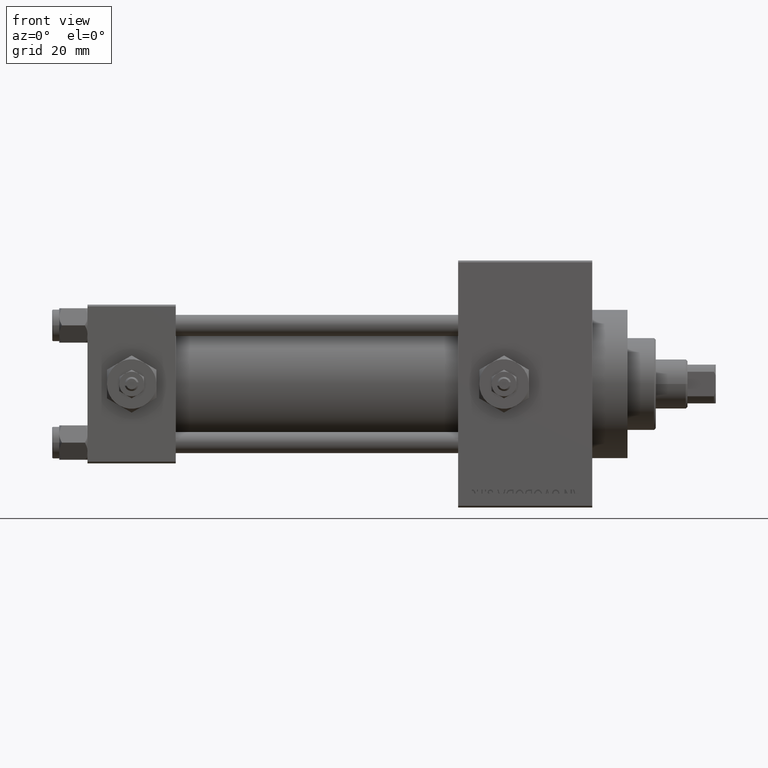
[diagram: clean part render]
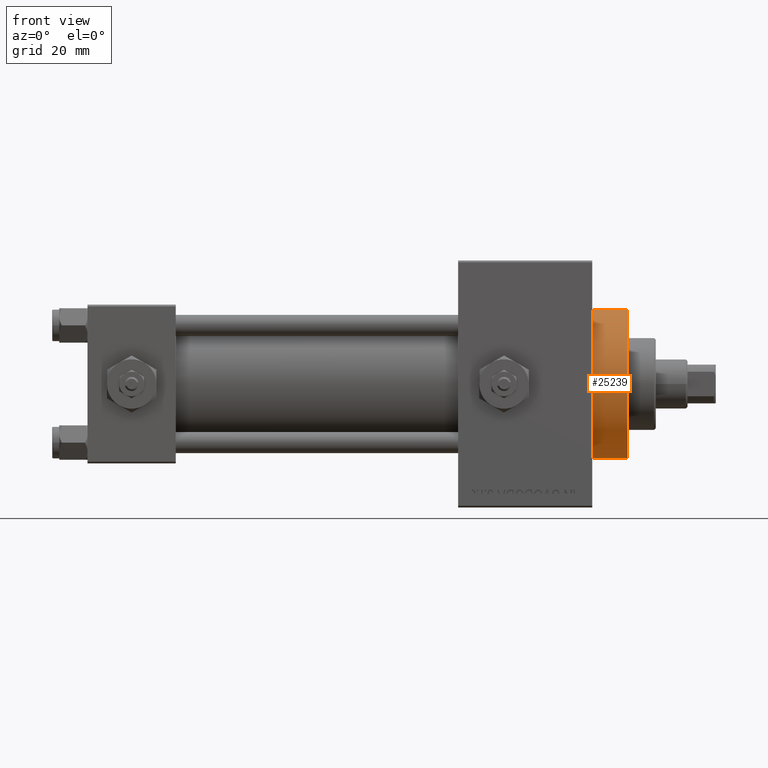
[diagram: same view with one face highlighted and labeled with its STEP entity id]
A machine part, front view. The second image highlights one B-rep face of the part: STEP entity #25239.
In plain terms, the highlighted cylindrical surface (partial cylindrical patch) has radius 21 mm, axis along (-1, -0, -0).
Its self-contained STEP definition (entity closure, byte-faithful):
#1595 = CARTESIAN_POINT ( 'NONE',  ( 143.0000000000000284, 2.571758278209441661E-15, -21.00000000000000000 ) ) ;
#2831 = EDGE_CURVE ( 'NONE', #43734, #8351, #10675, .T. ) ;
#2876 = DIRECTION ( 'NONE',  ( 0.000000000000000000, 0.000000000000000000, -1.000000000000000000 ) ) ;
#5166 = EDGE_CURVE ( 'NONE', #21254, #26496, #9471, .T. ) ;
#5625 = EDGE_CURVE ( 'NONE', #8351, #26496, #10371, .T. ) ;
#8351 = VERTEX_POINT ( 'NONE', #15463 ) ;
#9139 = ORIENTED_EDGE ( 'NONE', *, *, #5166, .F. ) ;
#9222 = AXIS2_PLACEMENT_3D ( 'NONE', #23115, #22864, #34569 ) ;
#9387 = CARTESIAN_POINT ( 'NONE',  ( 153.0000000000000284, 0.000000000000000000, 0.000000000000000000 ) ) ;
#9471 = LINE ( 'NONE', #24677, #40536 ) ;
#10371 = CIRCLE ( 'NONE', #11135, 21.00000000000000000 ) ;
#10675 = LINE ( 'NONE', #44079, #13010 ) ;
#11135 = AXIS2_PLACEMENT_3D ( 'NONE', #23081, #32445, #35945 ) ;
#11694 = CIRCLE ( 'NONE', #18056, 21.00000000000000000 ) ;
#11749 = ORIENTED_EDGE ( 'NONE', *, *, #28825, .F. ) ;
#13010 = VECTOR ( 'NONE', #33334, 1000.000000000000000 ) ;
#15463 = CARTESIAN_POINT ( 'NONE',  ( 143.0000000000000284, 0.000000000000000000, 21.00000000000000000 ) ) ;
#18056 = AXIS2_PLACEMENT_3D ( 'NONE', #9387, #36296, #2876 ) ;
#19380 = CARTESIAN_POINT ( 'NONE',  ( 153.0000000000000284, 2.571758278209441661E-15, -21.00000000000000000 ) ) ;
#21254 = VERTEX_POINT ( 'NONE', #19380 ) ;
#22569 = ORIENTED_EDGE ( 'NONE', *, *, #2831, .T. ) ;
#22864 = DIRECTION ( 'NONE',  ( -1.000000000000000000, -0.000000000000000000, -0.000000000000000000 ) ) ;
#23081 = CARTESIAN_POINT ( 'NONE',  ( 143.0000000000000284, 0.000000000000000000, 0.000000000000000000 ) ) ;
#23115 = CARTESIAN_POINT ( 'NONE',  ( 153.0000000000000284, 0.000000000000000000, 0.000000000000000000 ) ) ;
#24677 = CARTESIAN_POINT ( 'NONE',  ( 153.0000000000000284, 2.571758278209441661E-15, -21.00000000000000000 ) ) ;
#24930 = DIRECTION ( 'NONE',  ( -1.000000000000000000, -0.000000000000000000, -0.000000000000000000 ) ) ;
#25239 = ADVANCED_FACE ( 'NONE', ( #35054 ), #30818, .T. ) ;
#26496 = VERTEX_POINT ( 'NONE', #1595 ) ;
#28825 = EDGE_CURVE ( 'NONE', #43734, #21254, #11694, .T. ) ;
#30503 = CARTESIAN_POINT ( 'NONE',  ( 153.0000000000000284, 0.000000000000000000, 21.00000000000000000 ) ) ;
#30818 = CYLINDRICAL_SURFACE ( 'NONE', #9222, 21.00000000000000000 ) ;
#32445 = DIRECTION ( 'NONE',  ( 1.000000000000000000, 0.000000000000000000, 0.000000000000000000 ) ) ;
#33334 = DIRECTION ( 'NONE',  ( -1.000000000000000000, -0.000000000000000000, -0.000000000000000000 ) ) ;
#34569 = DIRECTION ( 'NONE',  ( 0.000000000000000000, 0.000000000000000000, 1.000000000000000000 ) ) ;
#35054 = FACE_OUTER_BOUND ( 'NONE', #46505, .T. ) ;
#35945 = DIRECTION ( 'NONE',  ( 0.000000000000000000, 0.000000000000000000, -1.000000000000000000 ) ) ;
#36296 = DIRECTION ( 'NONE',  ( 1.000000000000000000, 0.000000000000000000, 0.000000000000000000 ) ) ;
#40536 = VECTOR ( 'NONE', #24930, 1000.000000000000000 ) ;
#42425 = ORIENTED_EDGE ( 'NONE', *, *, #5625, .T. ) ;
#43734 = VERTEX_POINT ( 'NONE', #30503 ) ;
#44079 = CARTESIAN_POINT ( 'NONE',  ( 153.0000000000000284, 0.000000000000000000, 21.00000000000000000 ) ) ;
#46505 = EDGE_LOOP ( 'NONE', ( #9139, #11749, #22569, #42425 ) ) ;